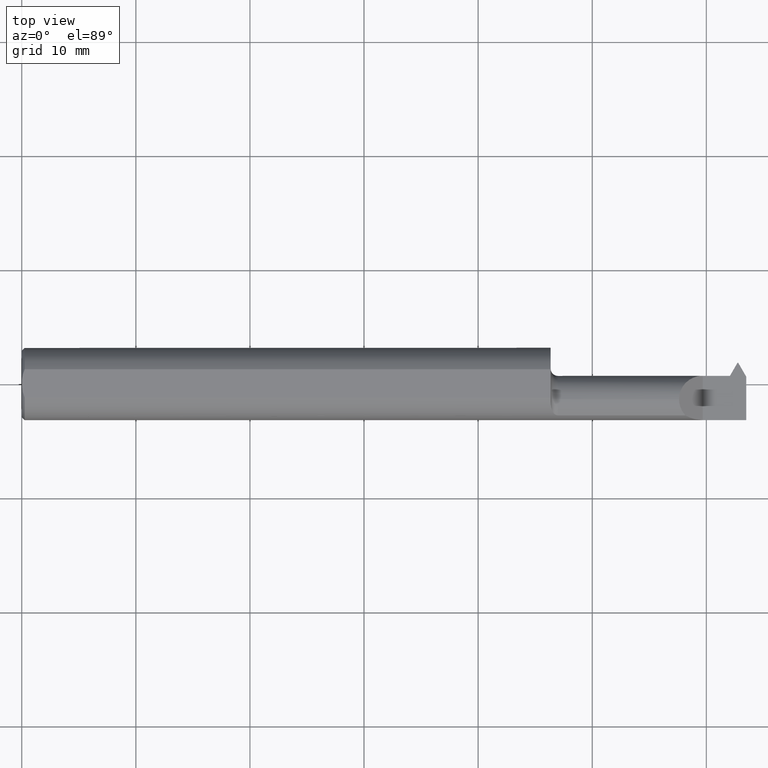
[diagram: clean part render]
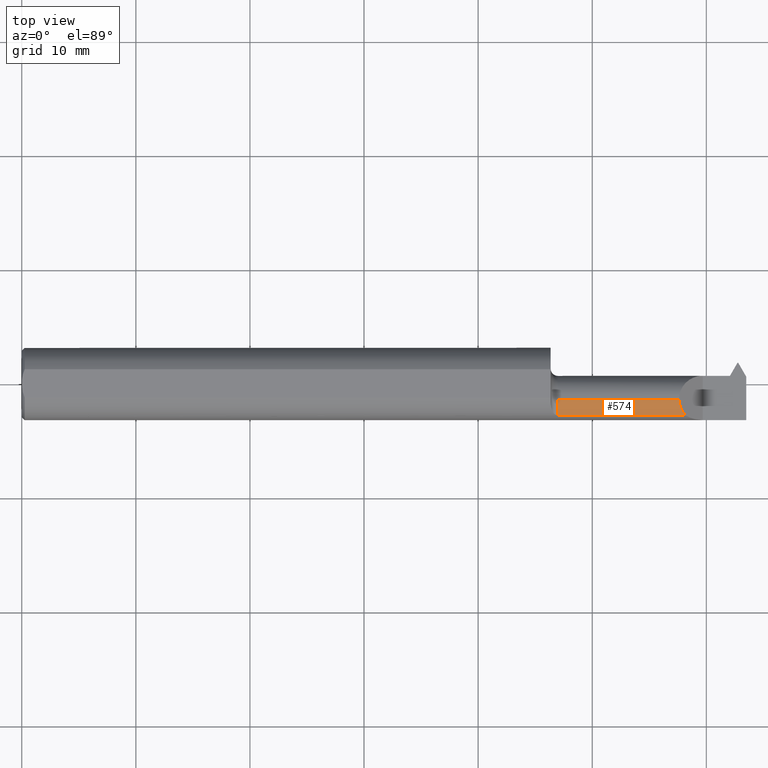
[diagram: same view with one face highlighted and labeled with its STEP entity id]
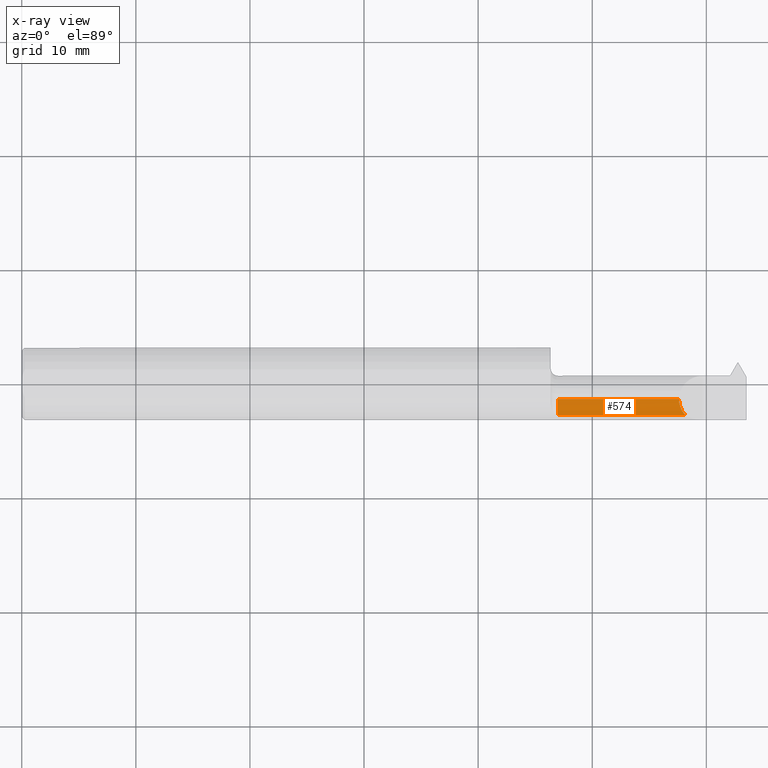
[diagram: x-ray of the same camera — body ghosted, the highlighted face saturated]
A machine part, top view. The second image highlights one B-rep face of the part: STEP entity #574.
The next image is the same camera in x-ray: the body ghosted, the highlighted face saturated — about 0% of this face is hidden behind the body in this view.
In plain terms, the highlighted cylindrical surface (edge-blend (fillet) strip) has radius 2.0828 mm, axis along (-1, -0, -0).
Its self-contained STEP definition (entity closure, byte-faithful):
#2 =( BOUNDED_CURVE ( )  B_SPLINE_CURVE ( 3, ( #417, #848, #226, #701 ),
 .UNSPECIFIED., .F., .T. ) 
 B_SPLINE_CURVE_WITH_KNOTS ( ( 4, 4 ),
 ( 5.541836096877574391, 6.283185307179586232 ),
 .UNSPECIFIED. ) 
 CURVE ( )  GEOMETRIC_REPRESENTATION_ITEM ( )  RATIONAL_B_SPLINE_CURVE ( ( 1.000000000000000000, 0.9547221238960329481, 0.9547221238960329481, 1.000000000000000000 ) ) 
 REPRESENTATION_ITEM ( '' )  );
#8 = FACE_OUTER_BOUND ( 'NONE', #280, .T. ) ;
#51 = EDGE_CURVE ( 'NONE', #784, #386, #187, .T. ) ;
#62 = EDGE_CURVE ( 'NONE', #386, #146, #2, .T. ) ;
#69 = AXIS2_PLACEMENT_3D ( 'NONE', #695, #428, #281 ) ;
#82 = CARTESIAN_POINT ( 'NONE',  ( 2.267999999999999350, -0.05385000000000006448, 0.08200000000000005895 ) ) ;
#146 = VERTEX_POINT ( 'NONE', #82 ) ;
#148 = CARTESIAN_POINT ( 'NONE',  ( 1.850000000000000311, -0.05385000000000006448, 0.08200000000000005895 ) ) ;
#187 = LINE ( 'NONE', #457, #394 ) ;
#226 = CARTESIAN_POINT ( 'NONE',  ( 2.267999999999999350, -0.07459183475902475546, 0.08200000000000007283 ) ) ;
#231 = VECTOR ( 'NONE', #445, 39.37007874015748143 ) ;
#258 = CARTESIAN_POINT ( 'NONE',  ( 1.850000000000000311, -0.05385000000000006448, 0.000000000000000000 ) ) ;
#273 = AXIS2_PLACEMENT_3D ( 'NONE', #258, #895, #684 ) ;
#280 = EDGE_LOOP ( 'NONE', ( #565, #339, #400, #439 ) ) ;
#281 = DIRECTION ( 'NONE',  ( 0.000000000000000000, 0.000000000000000000, 1.000000000000000000 ) ) ;
#339 = ORIENTED_EDGE ( 'NONE', *, *, #672, .T. ) ;
#386 = VERTEX_POINT ( 'NONE', #830 ) ;
#394 = VECTOR ( 'NONE', #743, 39.37007874015748143 ) ;
#400 = ORIENTED_EDGE ( 'NONE', *, *, #410, .F. ) ;
#410 = EDGE_CURVE ( 'NONE', #784, #598, #827, .T. ) ;
#416 = CYLINDRICAL_SURFACE ( 'NONE', #69, 0.08200000000000005895 ) ;
#417 = CARTESIAN_POINT ( 'NONE',  ( 2.289520233285355921, -0.1092232590529246261, 0.06047976671464366100 ) ) ;
#428 = DIRECTION ( 'NONE',  ( -1.000000000000000000, -0.000000000000000000, -0.000000000000000000 ) ) ;
#439 = ORIENTED_EDGE ( 'NONE', *, *, #51, .T. ) ;
#445 = DIRECTION ( 'NONE',  ( -1.000000000000000000, -0.000000000000000000, -0.000000000000000000 ) ) ;
#457 = CARTESIAN_POINT ( 'NONE',  ( 2.144015190534282578, -0.1092232590529246400, 0.06047976671464362630 ) ) ;
#565 = ORIENTED_EDGE ( 'NONE', *, *, #62, .T. ) ;
#574 = ADVANCED_FACE ( 'NONE', ( #8 ), #416, .T. ) ;
#598 = VERTEX_POINT ( 'NONE', #148 ) ;
#672 = EDGE_CURVE ( 'NONE', #146, #598, #730, .T. ) ;
#684 = DIRECTION ( 'NONE',  ( 0.000000000000000000, 0.000000000000000000, 1.000000000000000000 ) ) ;
#695 = CARTESIAN_POINT ( 'NONE',  ( 1.825000000000000400, -0.05385000000000006448, 0.000000000000000000 ) ) ;
#701 = CARTESIAN_POINT ( 'NONE',  ( 2.267999999999999350, -0.05385000000000006448, 0.08200000000000005895 ) ) ;
#730 = LINE ( 'NONE', #795, #231 ) ;
#743 = DIRECTION ( 'NONE',  ( 1.000000000000000000, 0.000000000000000000, 0.000000000000000000 ) ) ;
#784 = VERTEX_POINT ( 'NONE', #884 ) ;
#795 = CARTESIAN_POINT ( 'NONE',  ( 1.825000000000000400, -0.05385000000000006448, 0.08200000000000005895 ) ) ;
#827 = CIRCLE ( 'NONE', #273, 0.08200000000000005895 ) ;
#830 = CARTESIAN_POINT ( 'NONE',  ( 2.289520233285355921, -0.1092232590529246261, 0.06047976671464366100 ) ) ;
#848 = CARTESIAN_POINT ( 'NONE',  ( 2.275513611464082597, -0.09392495018146730656, 0.07448638853591715847 ) ) ;
#884 = CARTESIAN_POINT ( 'NONE',  ( 1.850000000000000311, -0.1092232590529246400, 0.06047976671464363324 ) ) ;
#895 = DIRECTION ( 'NONE',  ( -1.000000000000000000, -0.000000000000000000, -0.000000000000000000 ) ) ;